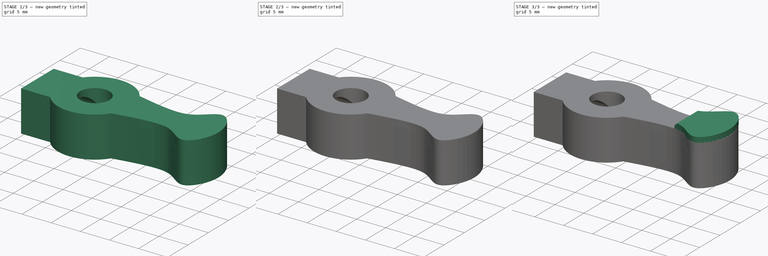
[diagram: build sequence overview — one tinted view per stage of 3, left to right]
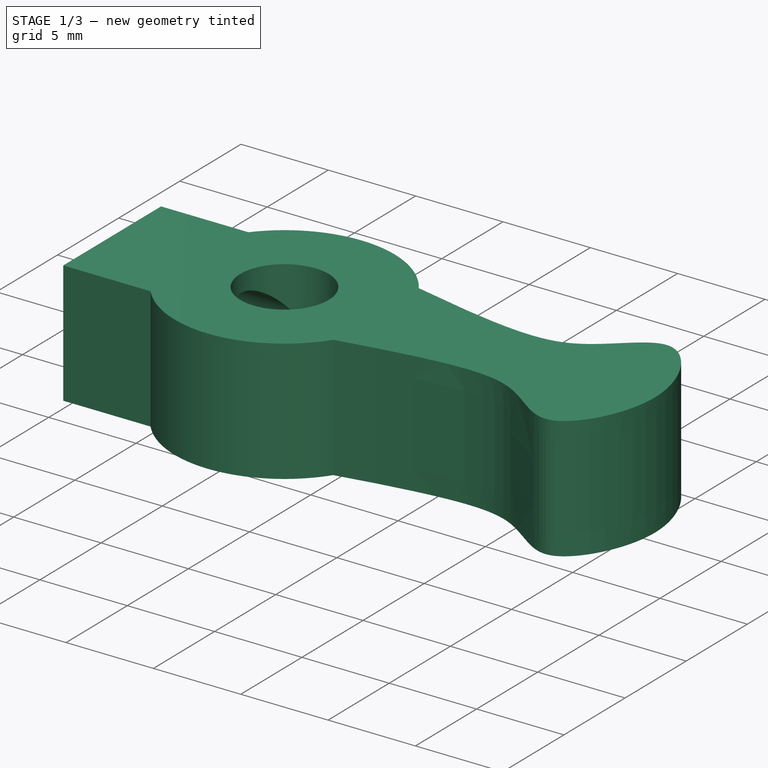
[diagram: stage 1 of 3 — iso view after this stage's code; geometry added in this stage tinted green]
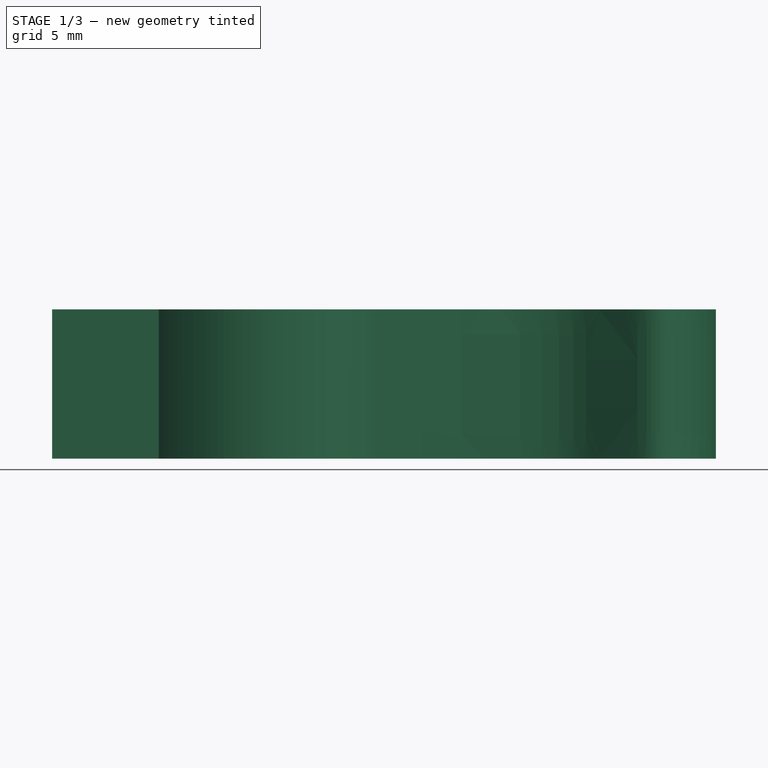
[diagram: stage 1 of 3 — front view after this stage's code; geometry added in this stage tinted green]
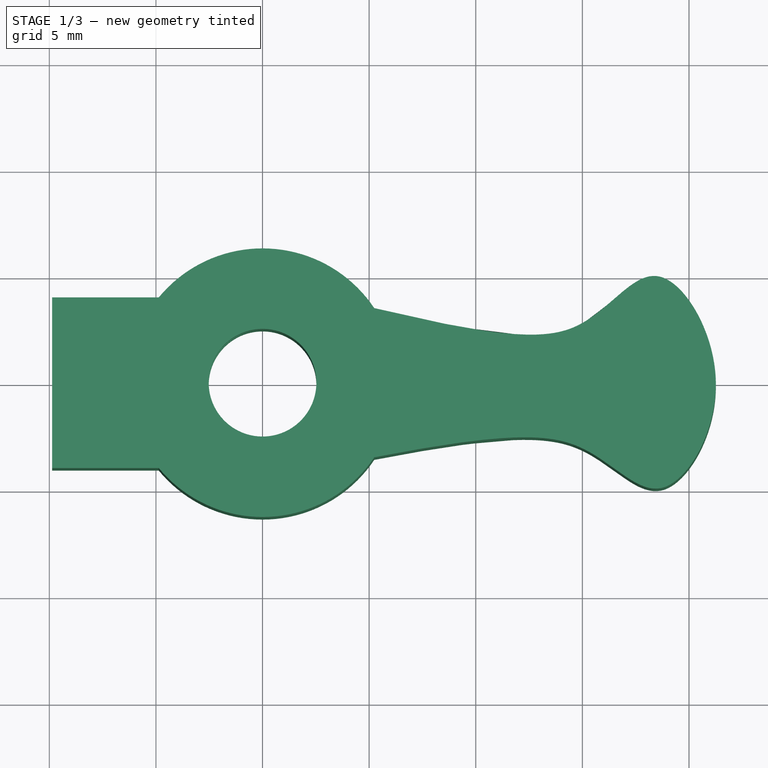
[diagram: stage 1 of 3 — top view after this stage's code; geometry added in this stage tinted green]
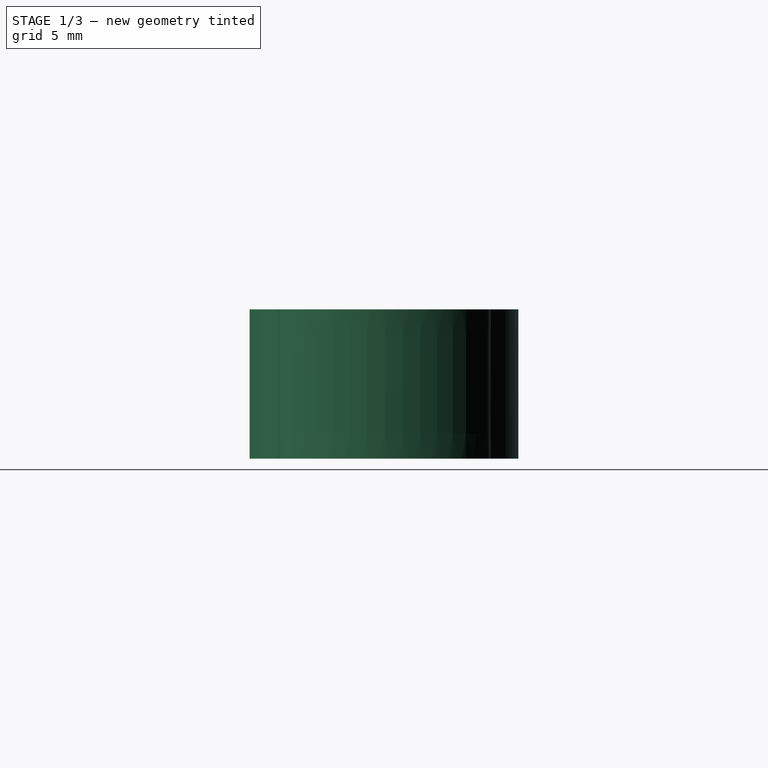
[diagram: stage 1 of 3 — right view after this stage's code; geometry added in this stage tinted green]
FCSTD DOCUMENT  (FreeCAD 0.20RUnknown)
Label: ApriliaSwitchKnob
License: All rights reserved
LicenseURL: http://en.wikipedia.org/wiki/All_rights_reserved
objects: Sketcher::SketchObject×4, PartDesign::Pad×2, PartDesign::Pocket×2, PartDesign::Chamfer×1, PartDesign::Body×1
note: 15 computed .brp shape members not serialized (recipe doc carries the construction recipe); baked Part::Feature solids carry a one-line shape summary decoded from their .brp

FEATURE [Sketcher::SketchObject] Sketch
  FullyConstrained = false
  MapMode = 5
  Support = -> [XY_Plane]
  sketch-geometry (26):
    g0: ArcOfCircle CenterX=0 CenterY=0 CenterZ=0 NormalX=0 NormalY=0 NormalZ=1 AngleXU=0 Radius=6.3 StartAngle=0.589031 EndAngle=2.45369
    g1: Circle CenterX=0 CenterY=0 CenterZ=0 NormalX=0 NormalY=0 NormalZ=1 AngleXU=0 Radius=2.525
    g2: LineSegment StartX=-9.86724 StartY=4 StartZ=0 EndX=-4.86724 EndY=4 EndZ=0
    g3: LineSegment StartX=-4.86724 StartY=-4 StartZ=0 EndX=-9.86724 EndY=-4 EndZ=0
    g4: LineSegment StartX=-9.86724 StartY=-4 StartZ=0 EndX=-9.86724 EndY=4 EndZ=0
    g5: LineSegment StartX=6.3006 StartY=5 StartZ=0 EndX=21.3006 EndY=5 EndZ=0
    g6: LineSegment StartX=21.3006 StartY=5 StartZ=0 EndX=21.3006 EndY=-5 EndZ=0
    g7: LineSegment StartX=21.3006 StartY=-5 StartZ=0 EndX=6.3006 EndY=-5 EndZ=0
    g8: LineSegment StartX=6.3006 StartY=-5 StartZ=0 EndX=6.3006 EndY=5 EndZ=0
    g9-g17: Circle x9 (B-spline internal-alignment scaffolding for g18; pole/knot coordinates omitted)
    g18: BSplineCurve PolesCount=9 KnotsCount=7 Degree=3 IsPeriodic=0
    g19: GeomPoint X=15.0885 Y=2.85328 Z=0
    g20: GeomPoint X=18.6976 Y=4.95802 Z=0
    g21: GeomPoint X=21.2598 Y=0.0367818 Z=0
    g22: GeomPoint X=18.8797 Y=-4.88656 Z=0
    g23: GeomPoint X=15.1608 Y=-3.15869 Z=0
    g24: GeomPoint X=5.23832 Y=-3.5 Z=0
    g25: ArcOfCircle CenterX=0 CenterY=0 CenterZ=0 NormalX=0 NormalY=0 NormalZ=1 AngleXU=0 Radius=6.3 StartAngle=3.8295 EndAngle=5.69415
  constraints (33):
    c: Coincident(g0,g-1)
    c: Diameter(g0) = 12.6
    c: Coincident(g1,g0)
    c: Diameter(g1) = 5.05
    c: Coincident(g3,g4)
    c: Coincident(g4,g2)
    c: Horizontal(g2)
    c: Horizontal(g3)
    c: Vertical(g4)
    c: DistanceY(g0,g2) = 4
    c: DistanceY(g3,g0) = 4
    c: DistanceX(g3,g3) = 5
    c: Coincident(g5,g6)
    c: Coincident(g6,g7)
    c: Coincident(g7,g8)
    c: Coincident(g8,g5)
    c: Horizontal(g5)
    c: Horizontal(g7)
    c: Vertical(g6)
    c: DistanceX(g7,g7) = 15
    c: DistanceY(g8,g8) = 10
    c: Symmetric(g5,g7,g-1)
    c: Equal(g9, g10-g13) x4
    c: PointOnObject(g13,g-1)
    c: Equal(g9, g14-g17) x4
    c: InternalAlignment(g9-g17 -> g18) x9
    c: InternalAlignment(g22,g18)
    c: InternalAlignment(g23,g18)
    c: DistanceY(g25,g0) = 7
    c: Equal(g0,g25)
    c: PointOnObject(g0,g2)
    c: Coincident(g25,g3)
    c: Coincident(g0,g25)
FEATURE [PartDesign::Pad] Pad
  Direction = (0,0,1)
  Length = 7
  Length2 = 10
  Profile = -> Sketch
  ReferenceAxis = -> Sketch [N_Axis]
  Type = 0
FEATURE [Sketcher::SketchObject] Sketch001
  FullyConstrained = true
  MapMode = 5
  Placement = pos=(-9.86724,0,0) rot=(0.57735,-0.57735,-0.57735;2.0944rad)
  Support = -> [Pad]
  sketch-geometry (1):
    g0: Circle CenterX=0 CenterY=3.5 CenterZ=0 NormalX=0 NormalY=0 NormalZ=1 AngleXU=0 Radius=2.5
  constraints (3):
    c: PointOnObject(g0,g-2)
    c: Diameter(g0) = 5
    c: DistanceY(g-1,g0) = 3.5
FEATURE [PartDesign::Pocket] Pocket
  BaseFeature = -> Pad
  Direction = (1,0,0)
  Length = 5
  Length2 = 5
  Profile = -> Sketch001
  ReferenceAxis = -> Sketch001 [N_Axis]
  Type = 2
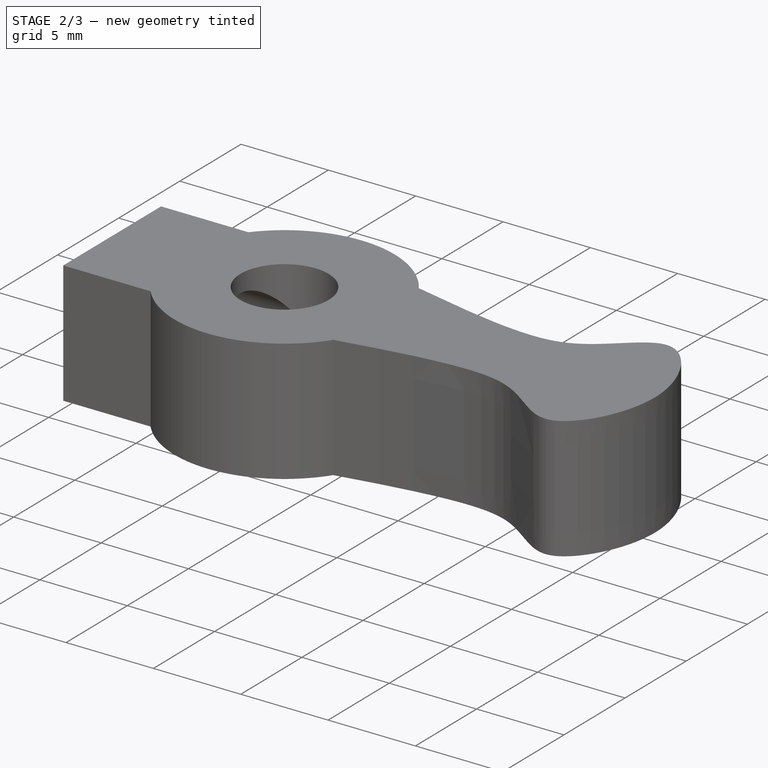
[diagram: stage 2 of 3 — iso view after this stage's code; geometry added in this stage tinted green]
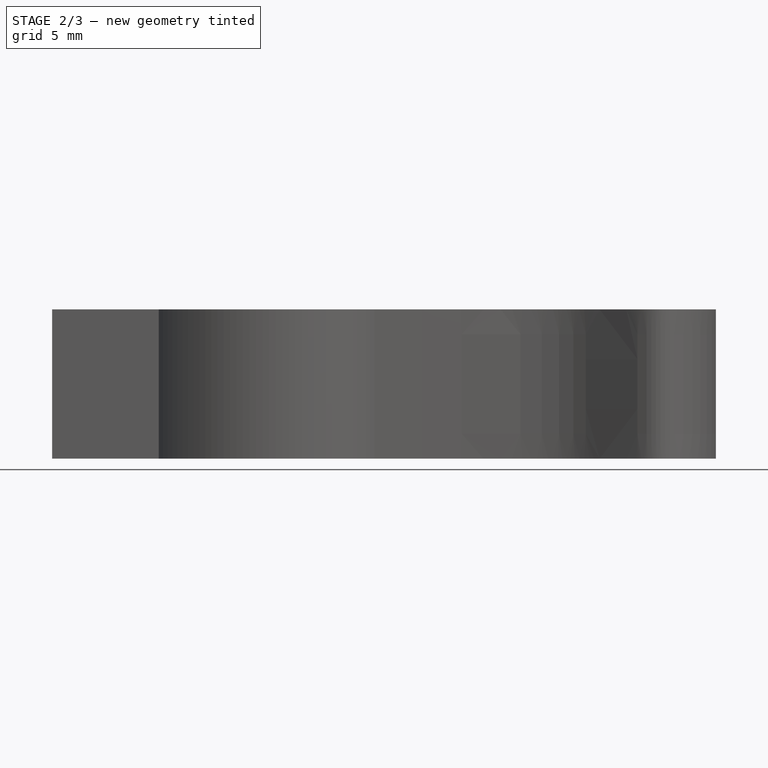
[diagram: stage 2 of 3 — front view after this stage's code; geometry added in this stage tinted green]
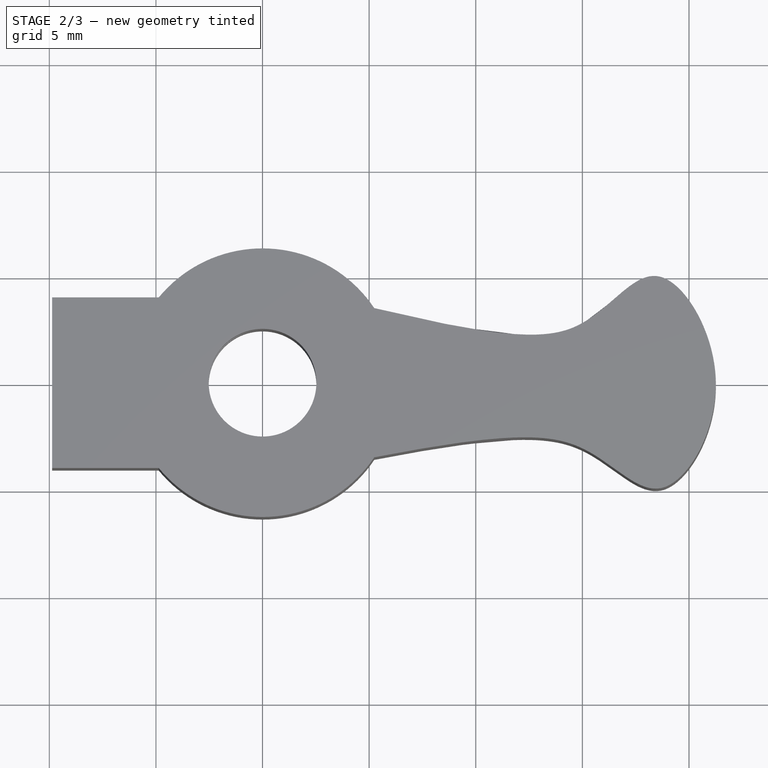
[diagram: stage 2 of 3 — top view after this stage's code; geometry added in this stage tinted green]
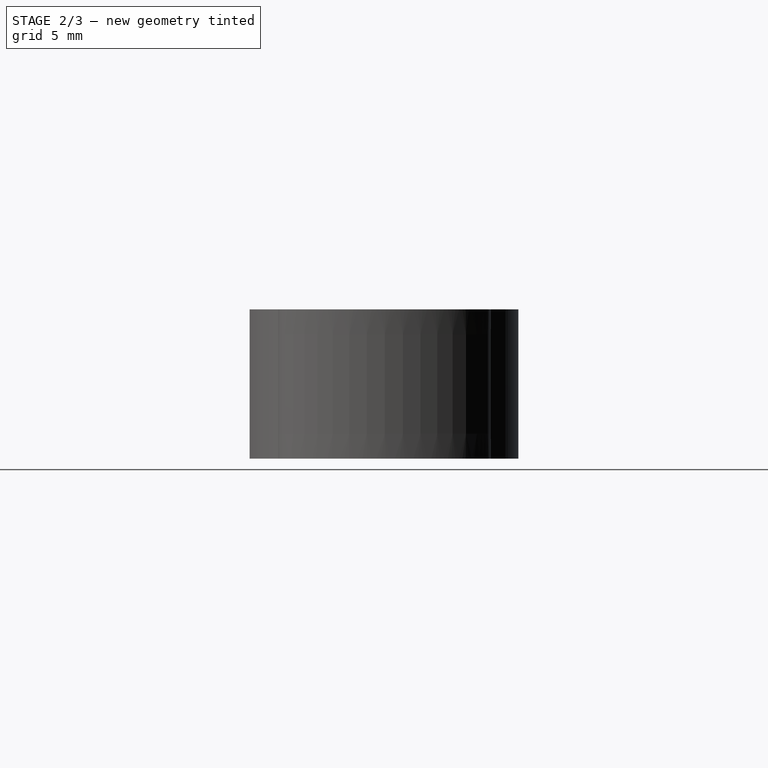
[diagram: stage 2 of 3 — right view after this stage's code; geometry added in this stage tinted green]
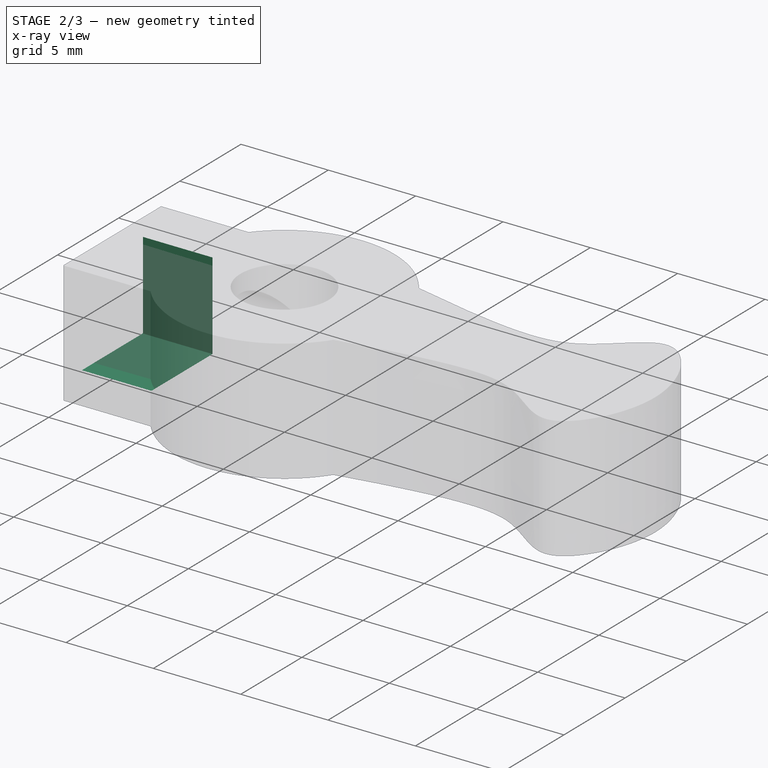
[diagram: stage 2 of 3 — x-ray composite at the iso view; earlier geometry ghosted, this stage's added geometry solid]
FEATURE [Sketcher::SketchObject] Sketch002
  FullyConstrained = true
  MapMode = 5
  Placement = pos=(-9.86724,0,0) rot=(0.57735,-0.57735,-0.57735;2.0944rad)
  Support = -> [Pocket]
  sketch-geometry (5):
    g0: LineSegment StartX=2.5 StartY=6 StartZ=0 EndX=2.5 EndY=1 EndZ=0
    g1: LineSegment StartX=2.5 StartY=1 StartZ=0 EndX=-2.5 EndY=1 EndZ=0
    g2: LineSegment StartX=-2.5 StartY=1 StartZ=0 EndX=-2.5 EndY=6 EndZ=0
    g3: LineSegment StartX=-2.5 StartY=6 StartZ=0 EndX=2.5 EndY=6 EndZ=0
    g4: GeomPoint X=0 Y=3.5 Z=0
  constraints (13):
    c: Coincident(g0,g1)
    c: Coincident(g1,g2)
    c: Coincident(g2,g3)
    c: Coincident(g3,g0)
    c: Horizontal(g1)
    c: Horizontal(g3)
    c: Vertical(g0)
    c: Vertical(g2)
    c: Symmetric(g1,g0,g4)
    c: PointOnObject(g4,g-2)
    c: DistanceY(g-1,g4) = 3.5
    c: DistanceX(g3,g3) = 5
    c: DistanceY(g0,g0) = 5
FEATURE [PartDesign::Pocket] Pocket001
  BaseFeature = -> Pocket
  Direction = (1,0,0)
  Length = 4
  Length2 = 5
  Profile = -> Sketch002
  ReferenceAxis = -> Sketch002 [N_Axis]
  Type = 0
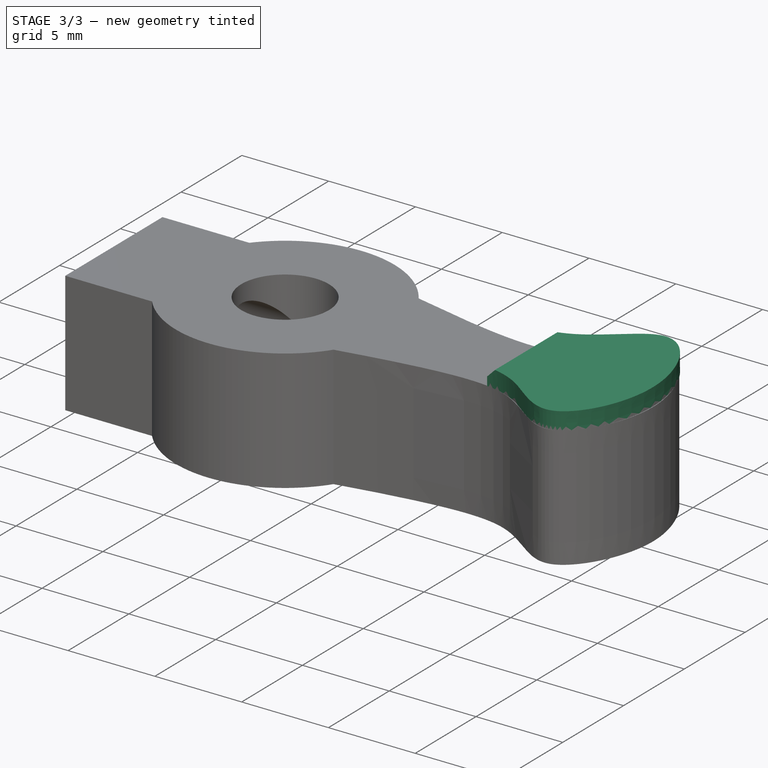
[diagram: stage 3 of 3 — iso view after this stage's code; geometry added in this stage tinted green]
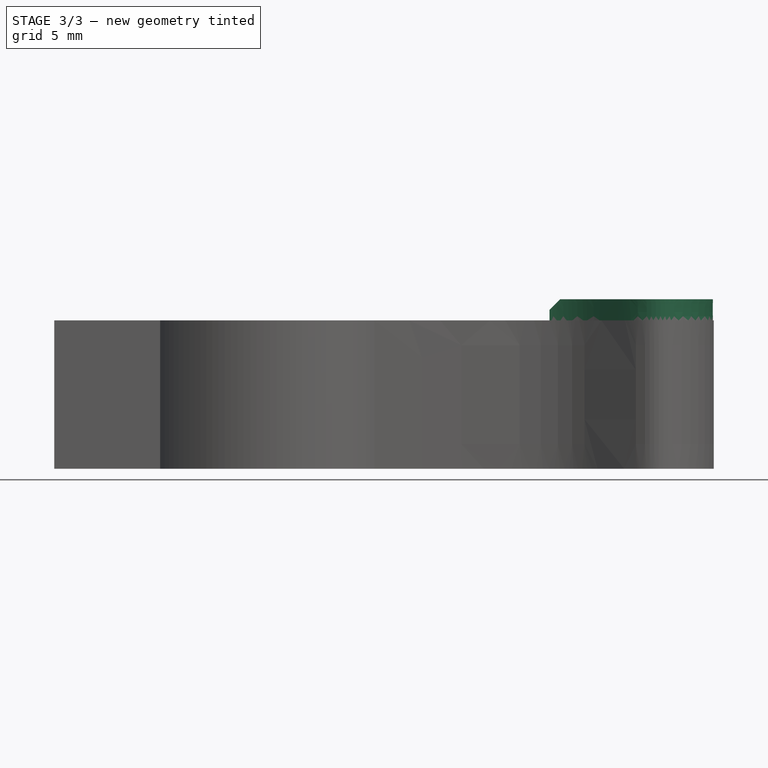
[diagram: stage 3 of 3 — front view after this stage's code; geometry added in this stage tinted green]
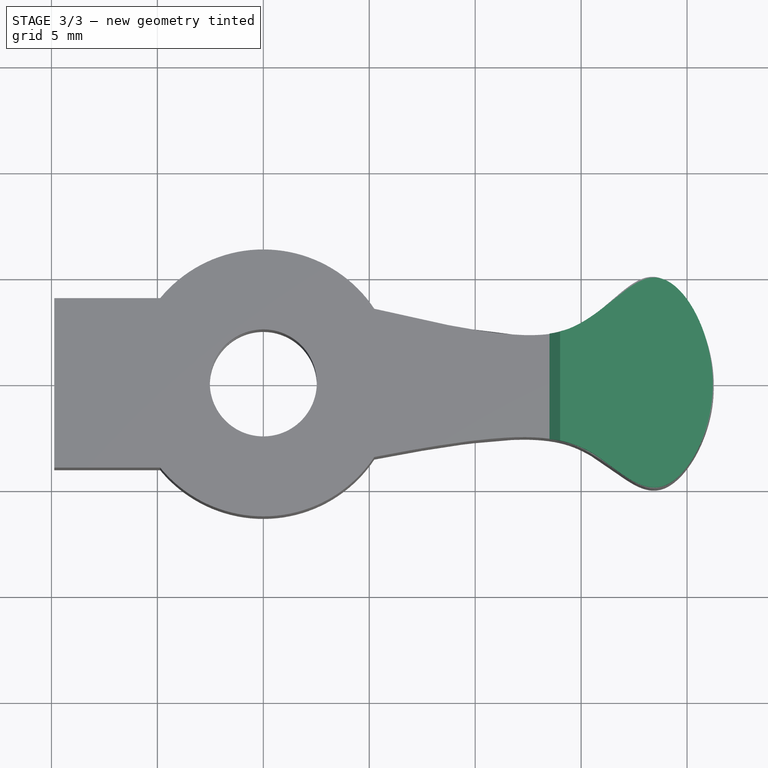
[diagram: stage 3 of 3 — top view after this stage's code; geometry added in this stage tinted green]
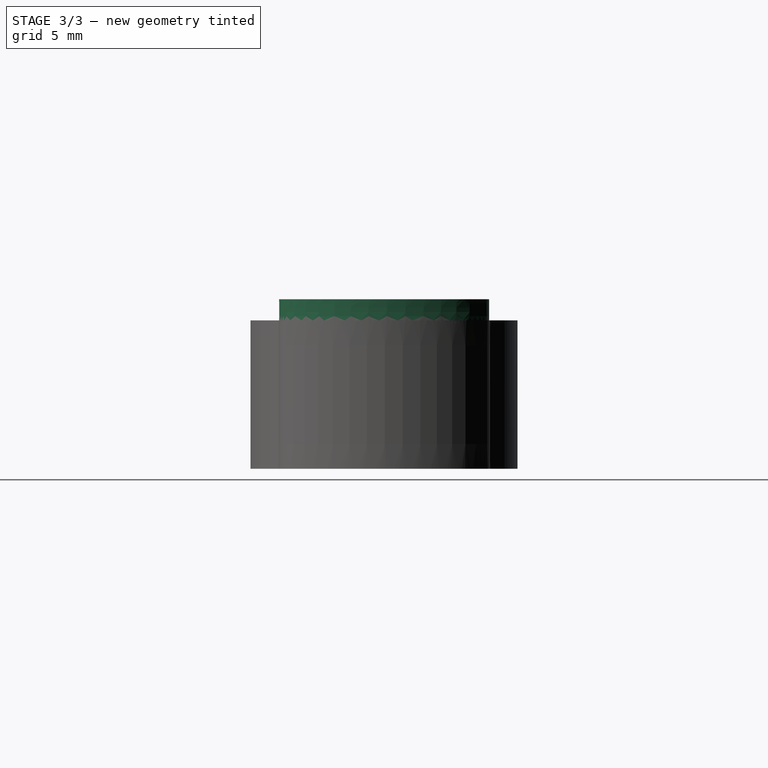
[diagram: stage 3 of 3 — right view after this stage's code; geometry added in this stage tinted green]
FEATURE [Sketcher::SketchObject] Sketch003
  FullyConstrained = false
  MapMode = 5
  Placement = pos=(0,0,7) rot=(0,0,1;0rad)
  Support = -> [Pocket001]
  sketch-geometry (16):
    g0-g7: Circle x8 (B-spline internal-alignment scaffolding for g8; pole/knot coordinates omitted)
    g8: BSplineCurve PolesCount=8 KnotsCount=6 Degree=3 IsPeriodic=0
    g9-g14: GeomPoint x6 (B-spline internal-alignment scaffolding for g8; pole/knot coordinates omitted)
    g15: LineSegment StartX=13.5066 StartY=2.31906 StartZ=0 EndX=13.5066 EndY=-2.66582 EndZ=0
  constraints (11):
    c: Weight(g0) = 1
    c: Equal(g0,g1)
    c: Equal(g0,g2)
    c: Equal(g0,g3)
    c: PointOnObject(g3,g-1)
    c: Equal(g0, g4-g7) x4
    c: InternalAlignment(g0-g7 -> g8) x8
    c: InternalAlignment(g9-g14 -> g8) x6
    c: Coincident(g15,g8)
    c: Coincident(g15,g8)
    c: Vertical(g15)
FEATURE [PartDesign::Pad] Pad001
  BaseFeature = -> Pocket001
  Direction = (0,0,1)
  Length = 1
  Length2 = 10
  Profile = -> Sketch003
  ReferenceAxis = -> Sketch003 [N_Axis]
  Type = 0
FEATURE [PartDesign::Chamfer] Chamfer
  Angle = 45
  Base = -> Pad001 [Edge51]
  BaseFeature = -> Pad001
  ChamferType = 0
  FlipDirection = false
  Size = 0.5
  Size2 = 1
  SupportTransform = false
  UseAllEdges = false
FEATURE [PartDesign::Body] Body
  Group = -> [Sketch,Pad,Sketch001,Pocket,Sketch002,Pocket001,Sketch003,Pad001,Chamfer]
  Origin = -> Origin
  Tip = -> Chamfer
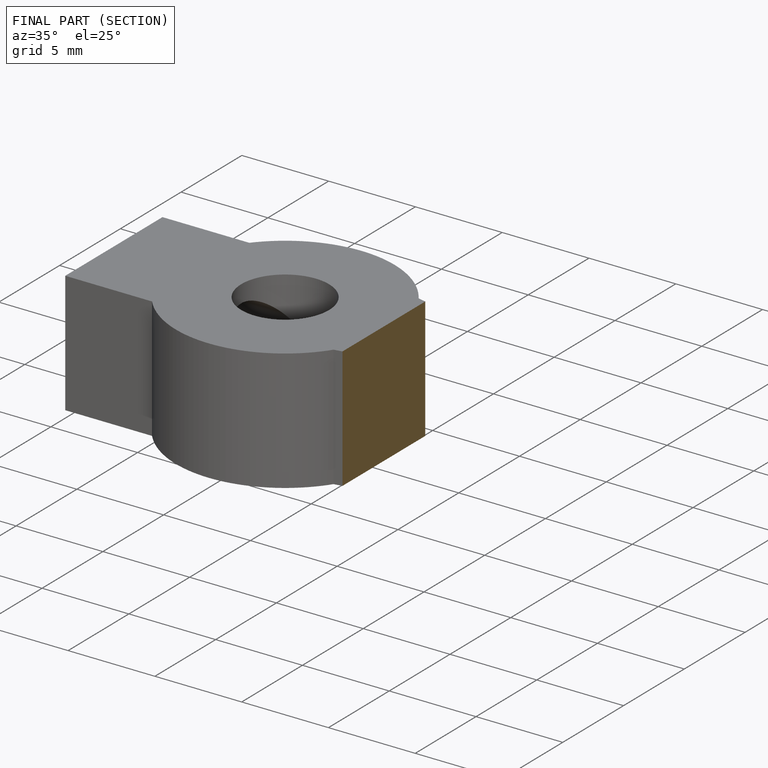
[diagram: finished part — half-section view (interior)]
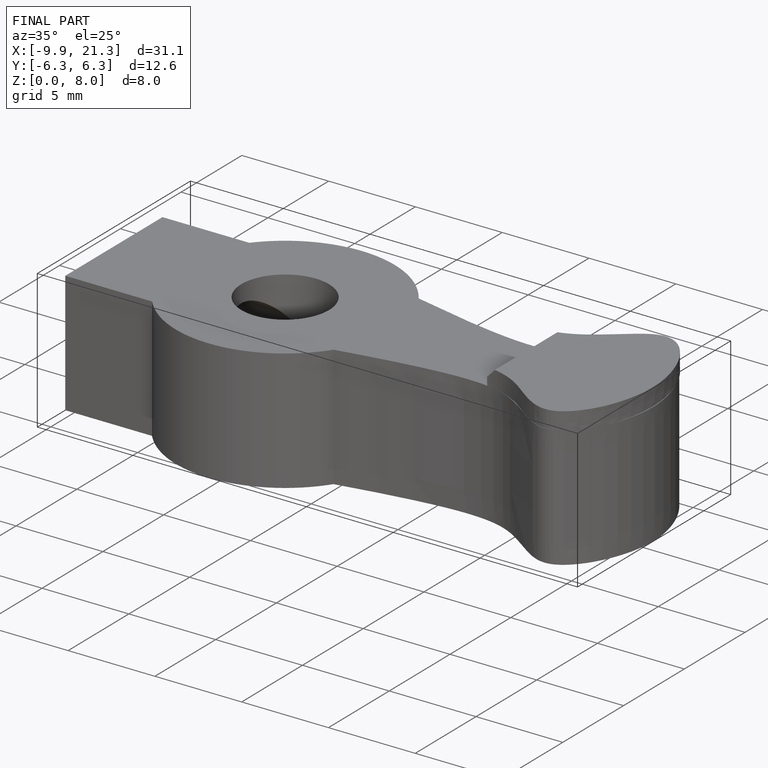
[diagram: finished part — iso view with bounding-box wireframe]
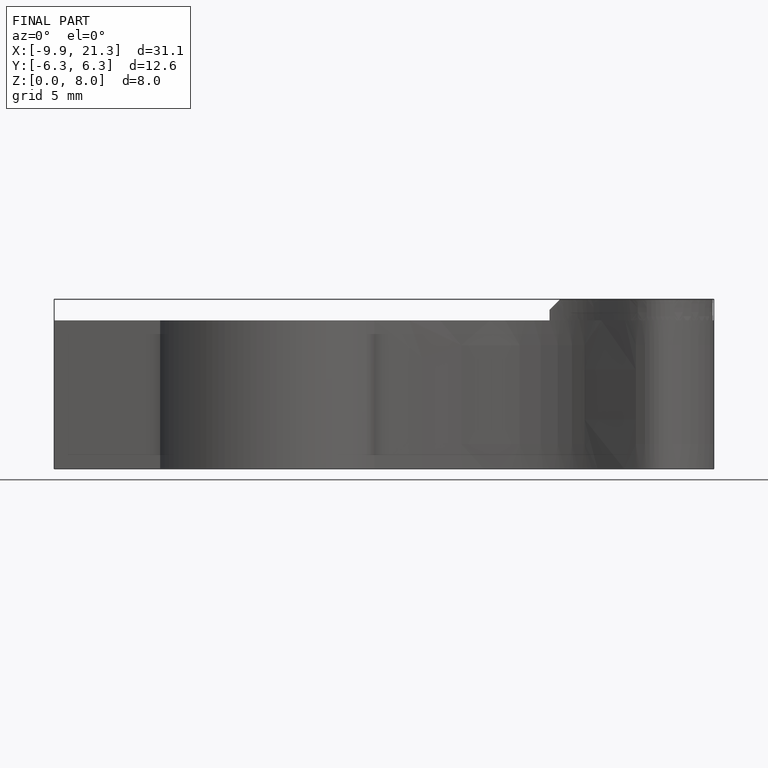
[diagram: finished part — front view with bounding-box wireframe]
